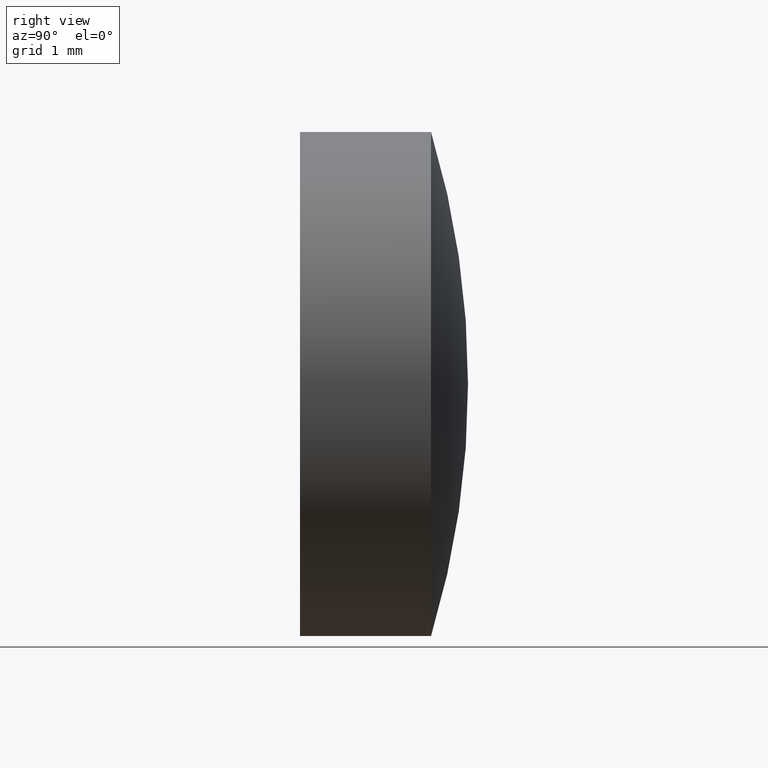
[diagram: clean part render]
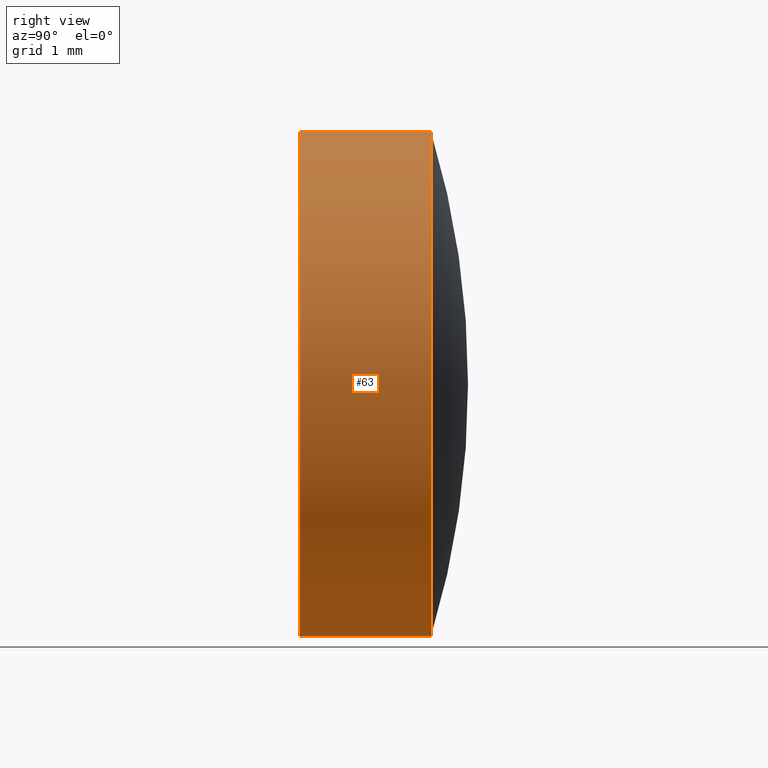
[diagram: same view with one face highlighted and labeled with its STEP entity id]
A machine part, right view. The second image highlights one B-rep face of the part: STEP entity #63.
In plain terms, the highlighted cylindrical surface (partial cylindrical patch) has radius 3 mm, axis along (-0, -1, -0).
Its self-contained STEP definition (entity closure, byte-faithful):
#9 = ORIENTED_EDGE ( 'NONE', *, *, #48, .F. ) ;
#15 = DIRECTION ( 'NONE',  ( -0.000000000000000000, -1.000000000000000000, -0.000000000000000000 ) ) ;
#23 = DIRECTION ( 'NONE',  ( -0.000000000000000000, -1.000000000000000000, -0.000000000000000000 ) ) ;
#25 = EDGE_CURVE ( 'NONE', #150, #28, #138, .T. ) ;
#28 = VERTEX_POINT ( 'NONE', #166 ) ;
#29 = AXIS2_PLACEMENT_3D ( 'NONE', #200, #58, #31 ) ;
#31 = DIRECTION ( 'NONE',  ( 0.000000000000000000, 0.000000000000000000, -1.000000000000000000 ) ) ;
#35 = VECTOR ( 'NONE', #56, 1000.000000000000000 ) ;
#42 = CARTESIAN_POINT ( 'NONE',  ( 0.000000000000000000, 0.000000000000000000, 0.000000000000000000 ) ) ;
#48 = EDGE_CURVE ( 'NONE', #75, #28, #128, .T. ) ;
#53 = ORIENTED_EDGE ( 'NONE', *, *, #25, .T. ) ;
#56 = DIRECTION ( 'NONE',  ( -0.000000000000000000, -1.000000000000000000, -0.000000000000000000 ) ) ;
#58 = DIRECTION ( 'NONE',  ( -0.000000000000000000, -1.000000000000000000, -0.000000000000000000 ) ) ;
#63 = ADVANCED_FACE ( 'NONE', ( #68 ), #171, .T. ) ;
#66 = CARTESIAN_POINT ( 'NONE',  ( 0.000000000000000000, 1.559999999999999609, 0.000000000000000000 ) ) ;
#68 = FACE_OUTER_BOUND ( 'NONE', #168, .T. ) ;
#72 = CIRCLE ( 'NONE', #109, 3.000000000000000000 ) ;
#75 = VERTEX_POINT ( 'NONE', #90 ) ;
#79 = CARTESIAN_POINT ( 'NONE',  ( 0.000000000000000000, 1.559999999999999609, -3.000000000000000000 ) ) ;
#80 = EDGE_CURVE ( 'NONE', #135, #75, #122, .T. ) ;
#88 = VECTOR ( 'NONE', #23, 1000.000000000000000 ) ;
#90 = CARTESIAN_POINT ( 'NONE',  ( 0.000000000000000000, 0.000000000000000000, -3.000000000000000000 ) ) ;
#103 = ORIENTED_EDGE ( 'NONE', *, *, #137, .T. ) ;
#109 = AXIS2_PLACEMENT_3D ( 'NONE', #66, #158, #165 ) ;
#112 = CARTESIAN_POINT ( 'NONE',  ( 3.673940397442059868E-16, 1.559999999999999609, 3.000000000000000000 ) ) ;
#116 = DIRECTION ( 'NONE',  ( 0.000000000000000000, 0.000000000000000000, -1.000000000000000000 ) ) ;
#122 = LINE ( 'NONE', #154, #35 ) ;
#128 = CIRCLE ( 'NONE', #29, 3.000000000000000000 ) ;
#132 = AXIS2_PLACEMENT_3D ( 'NONE', #42, #15, #116 ) ;
#133 = ORIENTED_EDGE ( 'NONE', *, *, #80, .F. ) ;
#135 = VERTEX_POINT ( 'NONE', #79 ) ;
#137 = EDGE_CURVE ( 'NONE', #135, #150, #72, .T. ) ;
#138 = LINE ( 'NONE', #153, #88 ) ;
#150 = VERTEX_POINT ( 'NONE', #112 ) ;
#153 = CARTESIAN_POINT ( 'NONE',  ( 3.673940397442059868E-16, 0.000000000000000000, 3.000000000000000000 ) ) ;
#154 = CARTESIAN_POINT ( 'NONE',  ( 0.000000000000000000, 0.000000000000000000, -3.000000000000000000 ) ) ;
#158 = DIRECTION ( 'NONE',  ( -0.000000000000000000, -1.000000000000000000, -0.000000000000000000 ) ) ;
#165 = DIRECTION ( 'NONE',  ( 0.000000000000000000, 0.000000000000000000, -1.000000000000000000 ) ) ;
#166 = CARTESIAN_POINT ( 'NONE',  ( 3.673940397442059868E-16, 0.000000000000000000, 3.000000000000000000 ) ) ;
#168 = EDGE_LOOP ( 'NONE', ( #103, #53, #9, #133 ) ) ;
#171 = CYLINDRICAL_SURFACE ( 'NONE', #132, 3.000000000000000000 ) ;
#200 = CARTESIAN_POINT ( 'NONE',  ( 0.000000000000000000, 0.000000000000000000, 0.000000000000000000 ) ) ;